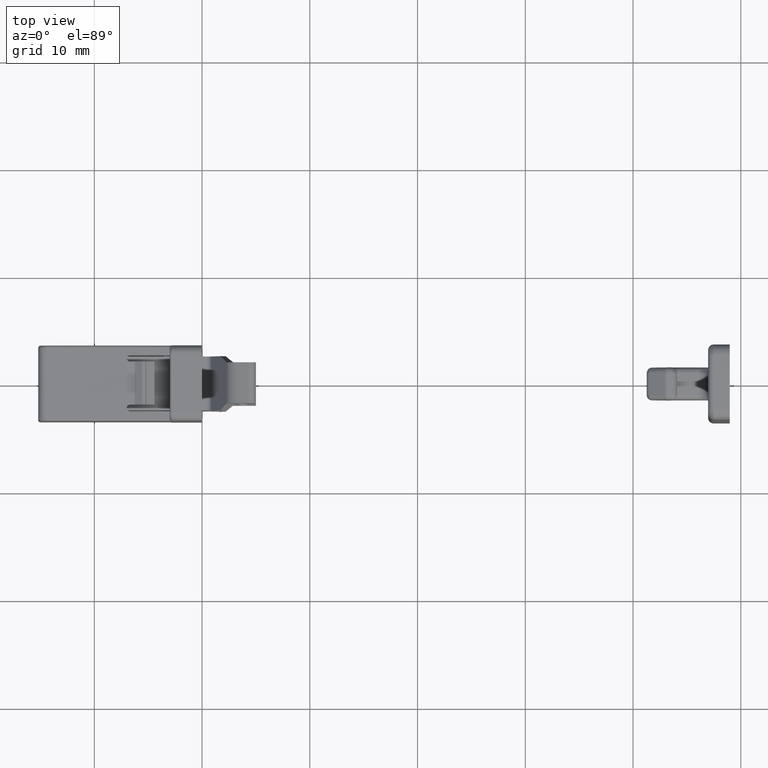
[diagram: clean part render]
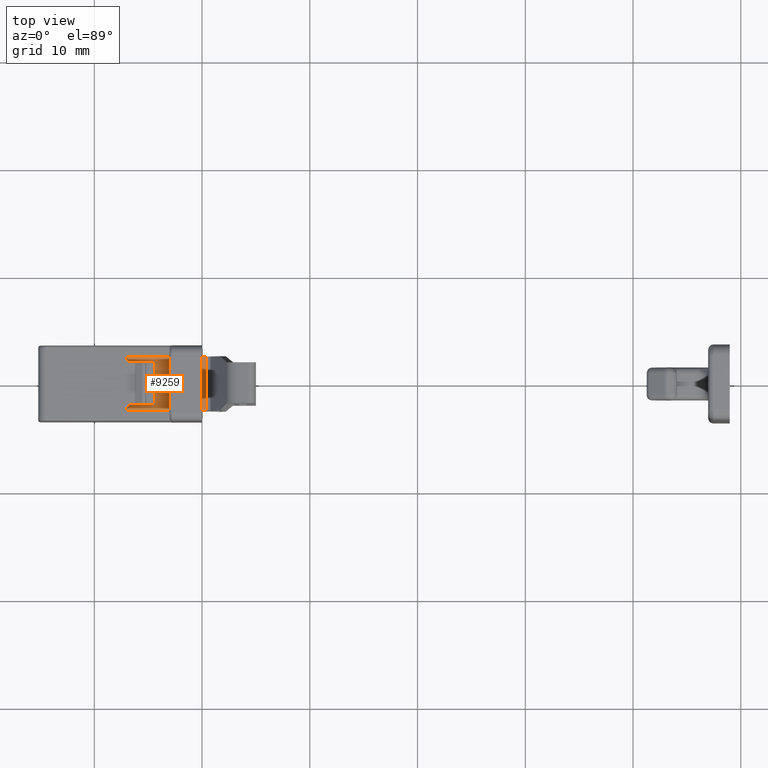
[diagram: same view with one face highlighted and labeled with its STEP entity id]
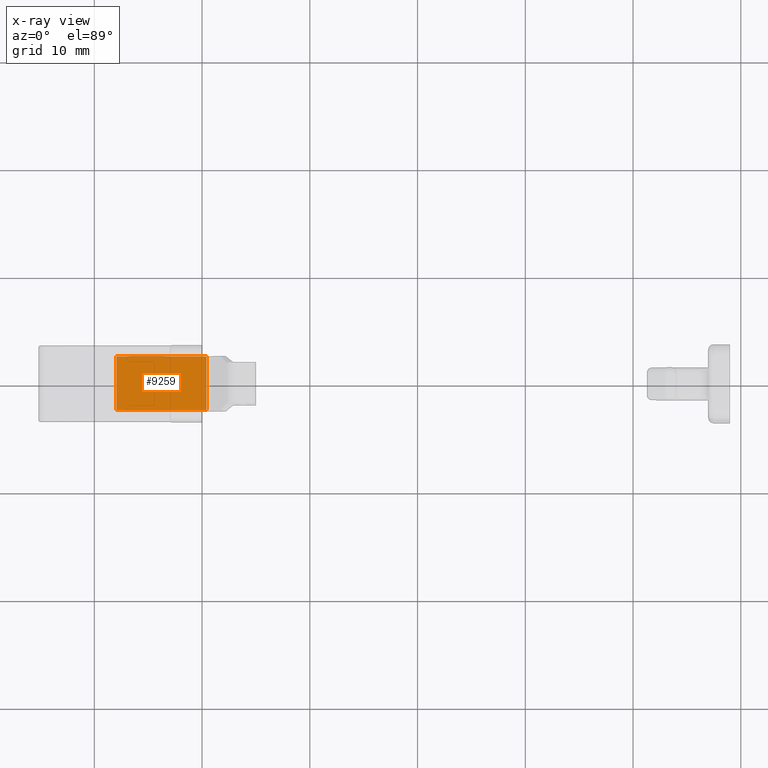
[diagram: x-ray of the same camera — body ghosted, the highlighted face saturated]
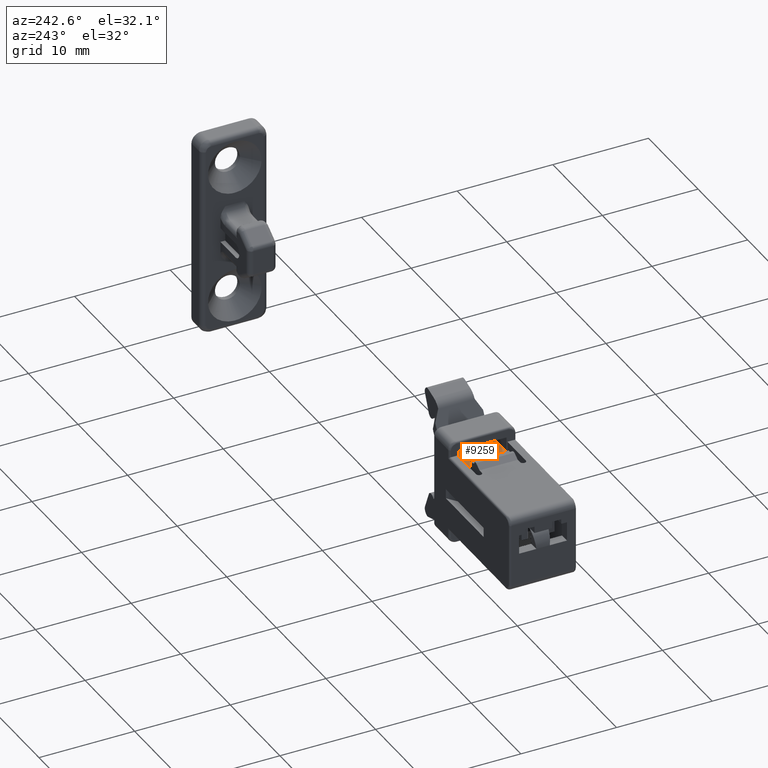
[diagram: same view with one face highlighted and labeled with its STEP entity id]
A machine part, top view. The second image highlights one B-rep face of the part: STEP entity #9259.
The next image is the same camera in x-ray: the body ghosted, the highlighted face saturated — about 0% of this face is hidden behind the body in this view.
A second angle (auxiliary view) of the same face is appended — the face is thin or edge-on in the first view.
In plain terms, the highlighted face is a freeform B-spline surface patch.
Its self-contained STEP definition (entity closure, byte-faithful):
#9193=CARTESIAN_POINT('',(0.403219000000036,-2.499999999999945,2.950000000000105));
#9194=VERTEX_POINT('',#9193);
#9209=CARTESIAN_POINT('',(0.403219000000036,2.499999999999945,2.950000000000105));
#9210=VERTEX_POINT('',#9209);
#9224=CARTESIAN_POINT('',(0.403219000000036,2.499999999999945,2.950000000000105));
#9225=CARTESIAN_POINT('',(0.403219000000036,-2.499999999999945,2.950000000000105));
#9226=QUASI_UNIFORM_CURVE('',1,(#9224,#9225),.UNSPECIFIED.,.F.,.U.);
#9227=EDGE_CURVE('',#9210,#9194,#9226,.T.);
#9232=CARTESIAN_POINT('',(0.820462321430356,-2.749749990308970,2.950000000000105));
#9233=CARTESIAN_POINT('',(-8.367242873328733,-2.749749990308970,2.950000000000105));
#9234=CARTESIAN_POINT('',(0.820462321430356,2.749750124419421,2.950000000000105));
#9235=CARTESIAN_POINT('',(-8.367242873328733,2.749750124419421,2.950000000000105));
#9236=B_SPLINE_SURFACE_WITH_KNOTS('',1,1,((#9232,#9234),(#9233,#9235)),.UNSPECIFIED.,.F.,.F.,.U.,(2,2),(2,2),(0.0,9.187705194759088),(0.0,5.499500114728391),.UNSPECIFIED.);
#9237=CARTESIAN_POINT('',(-7.950000000000000,-2.499999999999945,2.950000000000105));
#9238=VERTEX_POINT('',#9237);
#9239=CARTESIAN_POINT('',(-7.950000000000000,-2.499999999999945,2.950000000000105));
#9240=CARTESIAN_POINT('',(0.403219000000036,-2.499999999999945,2.950000000000105));
#9241=QUASI_UNIFORM_CURVE('',1,(#9239,#9240),.UNSPECIFIED.,.F.,.U.);
#9242=EDGE_CURVE('',#9238,#9194,#9241,.T.);
#9243=ORIENTED_EDGE('',*,*,#9242,.T.);
#9244=ORIENTED_EDGE('',*,*,#9227,.F.);
#9245=CARTESIAN_POINT('',(-7.950000000000000,2.499999999999945,2.950000000000105));
#9246=VERTEX_POINT('',#9245);
#9247=CARTESIAN_POINT('',(-7.950000000000000,2.499999999999945,2.950000000000105));
#9248=CARTESIAN_POINT('',(0.403219000000036,2.499999999999945,2.950000000000105));
#9249=QUASI_UNIFORM_CURVE('',1,(#9247,#9248),.UNSPECIFIED.,.F.,.U.);
#9250=EDGE_CURVE('',#9246,#9210,#9249,.T.);
#9251=ORIENTED_EDGE('',*,*,#9250,.F.);
#9252=CARTESIAN_POINT('',(-7.950000000000000,2.499999999999945,2.950000000000105));
#9253=CARTESIAN_POINT('',(-7.950000000000000,-2.499999999999945,2.950000000000105));
#9254=QUASI_UNIFORM_CURVE('',1,(#9252,#9253),.UNSPECIFIED.,.F.,.U.);
#9255=EDGE_CURVE('',#9246,#9238,#9254,.T.);
#9256=ORIENTED_EDGE('',*,*,#9255,.T.);
#9257=EDGE_LOOP('',(#9243,#9244,#9251,#9256));
#9258=FACE_OUTER_BOUND('',#9257,.T.);
#9259=ADVANCED_FACE('',(#9258),#9236,.F.);